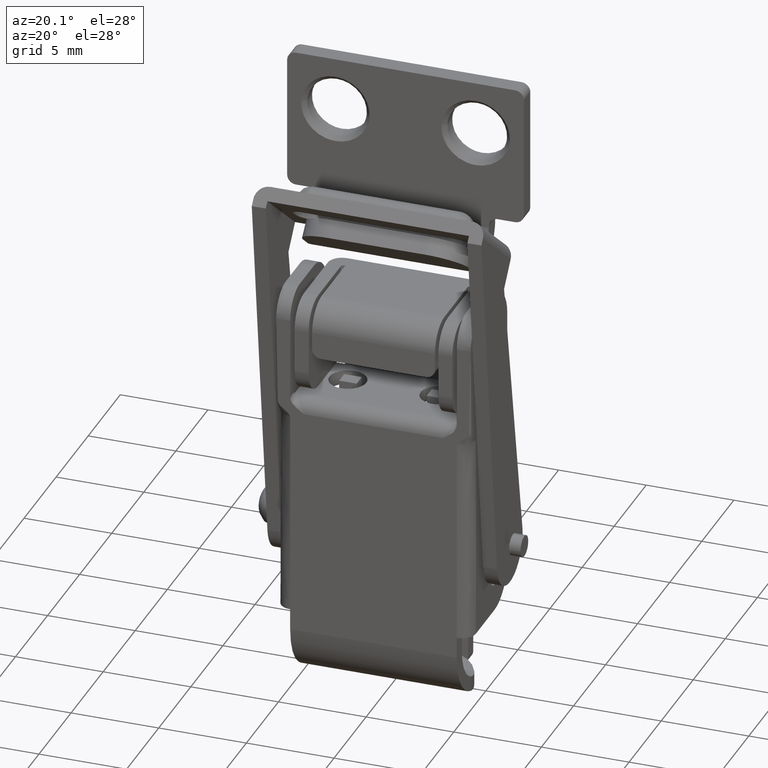
[diagram: clean part render]
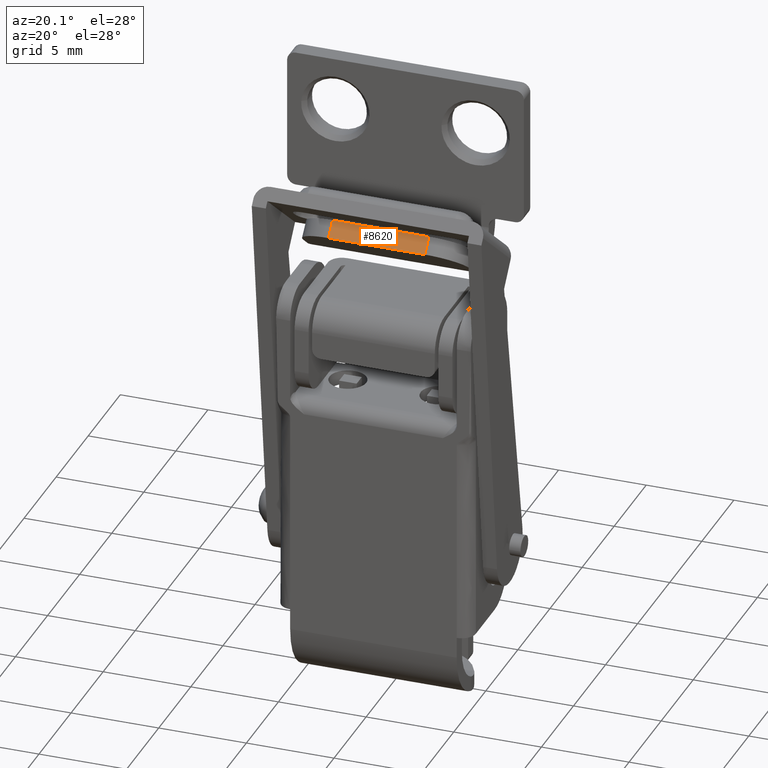
[diagram: same view with one face highlighted and labeled with its STEP entity id]
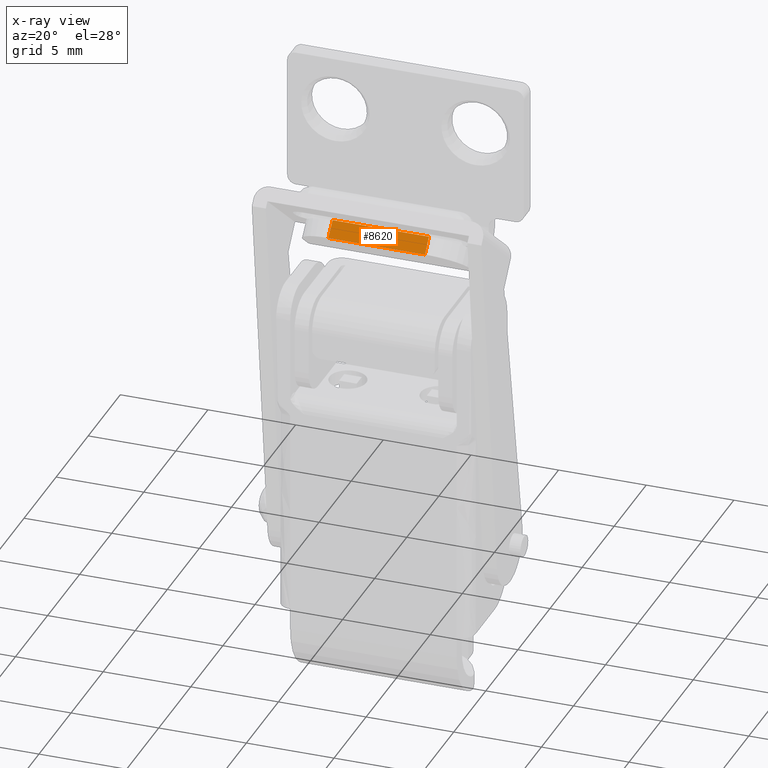
[diagram: x-ray of the same camera — body ghosted, the highlighted face saturated]
A machine part, auxiliary view. The second image highlights one B-rep face of the part: STEP entity #8620.
The next image is the same camera in x-ray: the body ghosted, the highlighted face saturated — about 0% of this face is hidden behind the body in this view.
In plain terms, the highlighted face is a freeform B-spline surface patch.
Its self-contained STEP definition (entity closure, byte-faithful):
#8585=CARTESIAN_POINT('',(-3.024716190139881,-2.670222992385690,19.373325060113341));
#8586=CARTESIAN_POINT('',(-3.024716190139881,-3.382306609945992,18.534426983661181));
#8587=CARTESIAN_POINT('',(3.024716337660948,-2.670222992385690,19.373325060113341));
#8588=CARTESIAN_POINT('',(3.024716337660948,-3.382306609945992,18.534426983661181));
#8589=B_SPLINE_SURFACE_WITH_KNOTS('',1,1,((#8585,#8587),(#8586,#8588)),.UNSPECIFIED.,.F.,.F.,.U.,(2,2),(2,2),(0.041708334948495,0.958291687403247),(0.0,6.049432527800829),.UNSPECIFIED.);
#8590=CARTESIAN_POINT('',(2.749991999999925,-2.702561000000000,19.335228000000001));
#8591=VERTEX_POINT('',#8590);
#8592=CARTESIAN_POINT('',(-2.749991999999925,-2.702561000000000,19.335228000000001));
#8593=VERTEX_POINT('',#8592);
#8594=CARTESIAN_POINT('',(2.749991999999925,-2.702561000000000,19.335228000000001));
#8595=CARTESIAN_POINT('',(-2.749991999999925,-2.702561000000000,19.335228000000001));
#8596=QUASI_UNIFORM_CURVE('',1,(#8594,#8595),.UNSPECIFIED.,.F.,.U.);
#8597=EDGE_CURVE('',#8591,#8593,#8596,.T.);
#8598=ORIENTED_EDGE('',*,*,#8597,.T.);
#8599=CARTESIAN_POINT('',(-2.749991999999925,-3.349968584966875,18.572524064231850));
#8600=VERTEX_POINT('',#8599);
#8601=CARTESIAN_POINT('',(-2.749991999999925,-2.702561000000000,19.335228000000001));
#8602=CARTESIAN_POINT('',(-2.749991999999925,-3.349968584966875,18.572524064231850));
#8603=QUASI_UNIFORM_CURVE('',1,(#8601,#8602),.UNSPECIFIED.,.F.,.U.);
#8604=EDGE_CURVE('',#8593,#8600,#8603,.T.);
#8605=ORIENTED_EDGE('',*,*,#8604,.T.);
#8606=CARTESIAN_POINT('',(2.749991999999925,-3.349968584966875,18.572524064231850));
#8607=VERTEX_POINT('',#8606);
#8608=CARTESIAN_POINT('',(2.749991999999925,-3.349968584966875,18.572524064231850));
#8609=CARTESIAN_POINT('',(-2.749991999999925,-3.349968584966875,18.572524064231850));
#8610=QUASI_UNIFORM_CURVE('',1,(#8608,#8609),.UNSPECIFIED.,.F.,.U.);
#8611=EDGE_CURVE('',#8607,#8600,#8610,.T.);
#8612=ORIENTED_EDGE('',*,*,#8611,.F.);
#8613=CARTESIAN_POINT('',(2.749991999999925,-3.349968584966875,18.572524064231850));
#8614=CARTESIAN_POINT('',(2.749991999999925,-2.702561000000000,19.335228000000001));
#8615=QUASI_UNIFORM_CURVE('',1,(#8613,#8614),.UNSPECIFIED.,.F.,.U.);
#8616=EDGE_CURVE('',#8607,#8591,#8615,.T.);
#8617=ORIENTED_EDGE('',*,*,#8616,.T.);
#8618=EDGE_LOOP('',(#8598,#8605,#8612,#8617));
#8619=FACE_OUTER_BOUND('',#8618,.T.);
#8620=ADVANCED_FACE('',(#8619),#8589,.T.);